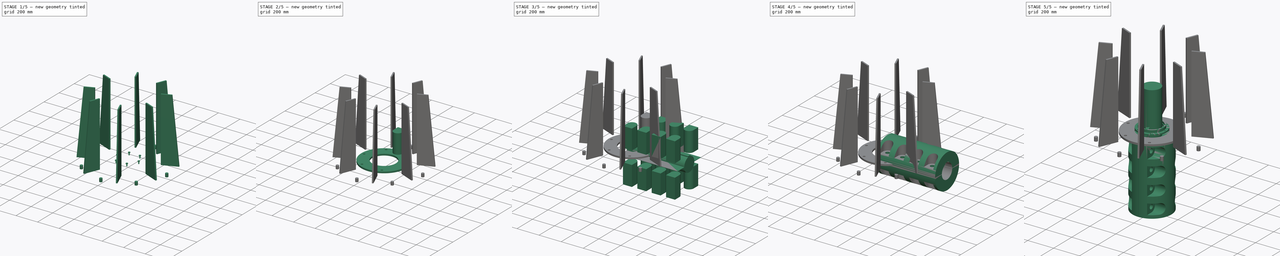
[diagram: build sequence overview — one tinted view per stage of 5, left to right]
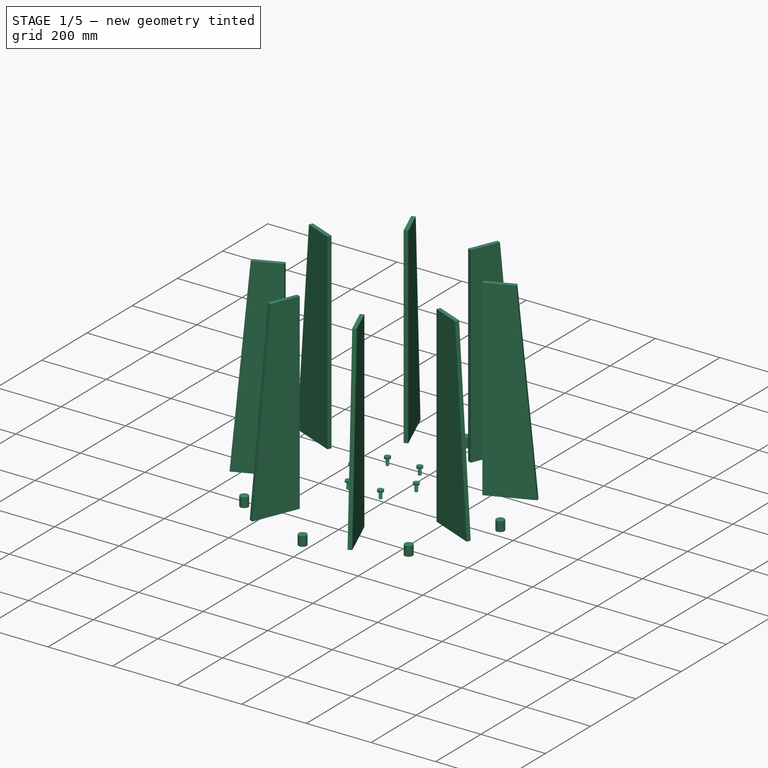
[diagram: stage 1 of 5 — iso view after this stage's code; geometry added in this stage tinted green]
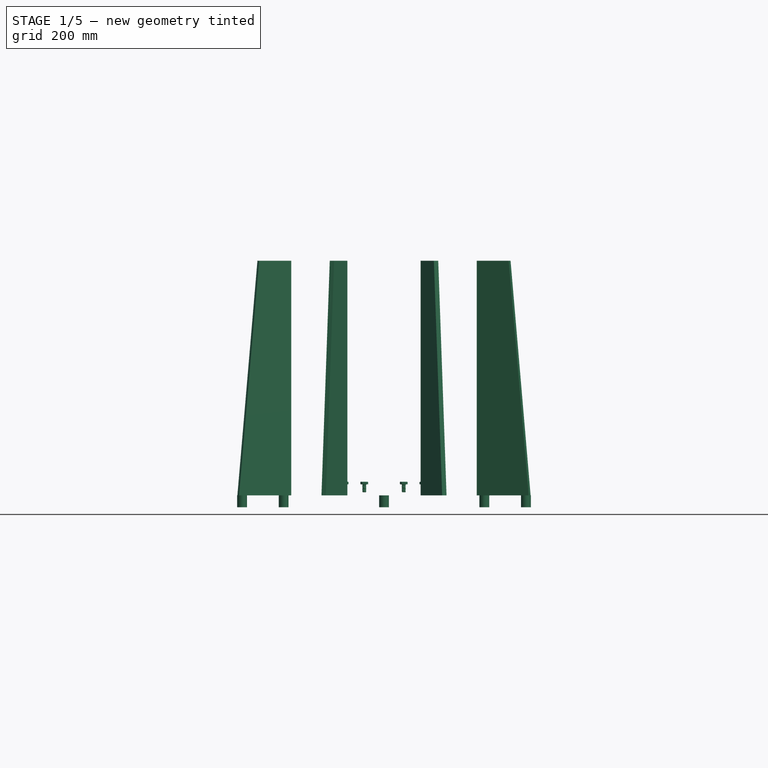
[diagram: stage 1 of 5 — front view after this stage's code; geometry added in this stage tinted green]
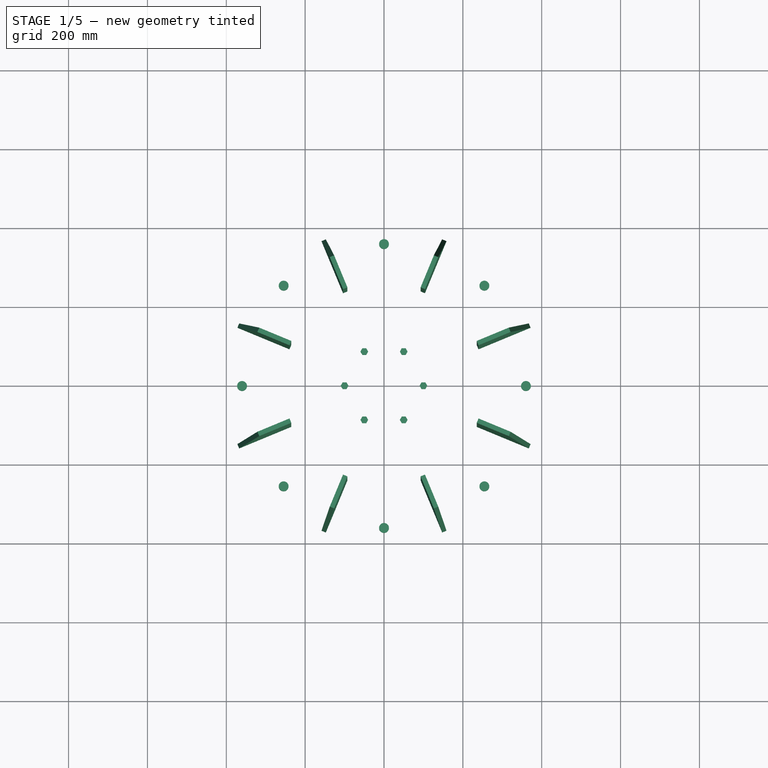
[diagram: stage 1 of 5 — top view after this stage's code; geometry added in this stage tinted green]
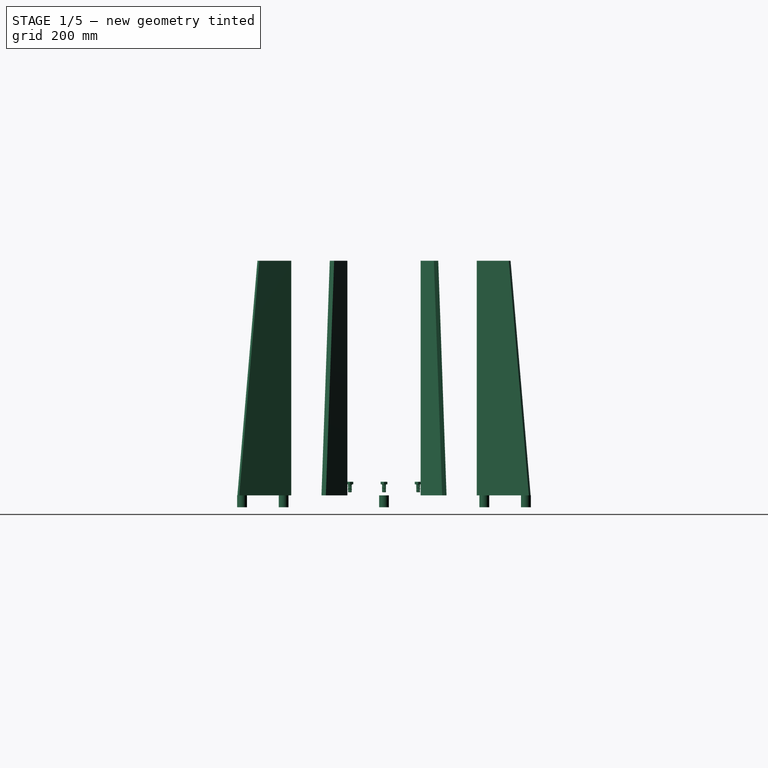
[diagram: stage 1 of 5 — right view after this stage's code; geometry added in this stage tinted green]
FCSTD DOCUMENT  (FreeCAD 0.21R33771 (Git))
Label: 駆動部Assy
License: All rights reserved
objects: Part::Feature×18, Sketcher::SketchObject×13, Part::FeaturePython×10, Part::Extrusion×7, App::Part×6, Part::Cut×6, PartDesign::Revolution×4, PartDesign::Body×4, Part::Revolution×2, Spreadsheet::Sheet×2, Part::Mirroring×2, Part::MultiFuse×2, Part::Compound×1, PartDesign::Pocket×1, PartDesign::PolarPattern×1
note: 72 computed .brp shape members not serialized (recipe doc carries the construction recipe); baked Part::Feature solids carry a one-line shape summary decoded from their .brp

FEATURE [PartDesign::Body] Body
  Group = -> [Sketch,Revolution]
  Origin = -> Origin002
  Tip = -> Revolution
FEATURE [Part::FeaturePython] Screw  label="M10x20-Screw"  # Fasteners workbench fastener (typed FeaturePython)
  Placement = pos=(100,0,28.046) rot=(0,0,1;0rad)
  diameter = 10
  invert = false
  leftHanded = false
  length = 0
  lengthCustom = 20
  matchOuter = false
  offset = 0
  thread = true
  type = 22
FEATURE [Part::FeaturePython] Array  # Draft array (typed FeaturePython)
  AlwaysSyncPlacement = false
  Angle = 360
  ArrayType = 1
  Axis = (0,0,1)
  Base = -> Screw
  Center = (0,0,0)
  Count = 6
  ExpandArray = false
  Fuse = false
  IntervalAxis = (0,0,0)
  IntervalX = (50,0,0)
  IntervalY = (0,50,0)
  IntervalZ = (0,0,50)
  NumberCircles = 3
  NumberPolar = 6
  NumberX = 2
  NumberY = 2
  NumberZ = 1
  PlacementList = 6 placements: [(100,0,28.046),(50,86.6025,28.046),(-50,86.6025,28.046),(-100,1.22465e-14,28.046),(-50,-86.6025,28.046),(50,-86.6025,28.046)]
  RadialDistance = 50
  ScaleList = (6) [(1,1,1),(1,1,1),(1,1,1),(1,1,1),(1,1,1),(1,1,1)]
  Symmetry = 1
  TangentialDistance = 25
FEATURE [App::Part] Part001  label="house"
  Group = -> [Cut,Body,Revolve,Extrude004,Array003,Screw,Array,Sketch005,Sketch010,Cut005]
  Origin = -> Origin006
FEATURE [Part::Feature] Part__Feature  label="減速機 v2"
  Placement = pos=(0,-7.2e-14,324.85) rot=(1,0,0;1.5708rad)
  shape: bbox 550 x 550 x 1097 mm, 38 faces (baked)
FEATURE [Sketcher::SketchObject] Sketch011
  FullyConstrained = true
  Placement = pos=(0,0,0) rot=(1,0,0;1.5708rad)
  sketch-geometry (12):
    g0: LineSegment StartX=170 StartY=0 StartZ=0 EndX=400 EndY=0 EndZ=0
    g1: LineSegment StartX=400 StartY=0 StartZ=0 EndX=400 EndY=-20 EndZ=0
    g2: LineSegment StartX=400 StartY=-20 StartZ=0 EndX=170 EndY=-20 EndZ=0
    g3: LineSegment StartX=170 StartY=-20 StartZ=0 EndX=170 EndY=0 EndZ=0
    g4: LineSegment StartX=250 StartY=625 StartZ=0 EndX=345 EndY=625 EndZ=0
    g5: LineSegment StartX=345 StartY=625 StartZ=0 EndX=345 EndY=595 EndZ=0
    g6: LineSegment StartX=345 StartY=595 StartZ=0 EndX=250 EndY=595 EndZ=0
    g7: LineSegment StartX=250 StartY=595 StartZ=0 EndX=250 EndY=625 EndZ=0
    g8: LineSegment StartX=245 StartY=595 StartZ=0 EndX=257 EndY=595 EndZ=0
    g9: LineSegment StartX=257 StartY=595 StartZ=0 EndX=257 EndY=0 EndZ=0
    g10: LineSegment StartX=257 StartY=0 StartZ=0 EndX=245 EndY=0 EndZ=0
    g11: LineSegment StartX=245 StartY=0 StartZ=0 EndX=245 EndY=595 EndZ=0
  constraints (36):
    c: Coincident(g0,g1)
    c: Coincident(g1,g2)
    c: Coincident(g2,g3)
    c: Coincident(g3,g0)
    c: Horizontal(g0)
    c: Horizontal(g2)
    c: Vertical(g1)
    c: Vertical(g3)
    c: Coincident(g4,g5)
    c: Coincident(g5,g6)
    c: Coincident(g6,g7)
    c: Coincident(g7,g4)
    c: Horizontal(g4)
    c: Horizontal(g6)
    c: Vertical(g7)
    c: Coincident(g8,g9)
    c: Coincident(g9,g10)
    c: Coincident(g10,g11)
    c: Coincident(g11,g8)
    c: Horizontal(g8)
    c: Horizontal(g10)
    c: Vertical(g9)
    c: Vertical(g11)
    c: PointOnObject(g8,g6)
    c: PointOnObject(g9,g0)
    c: DistanceY(g5,g5) = 30
    c: DistanceY(g1,g1) = 20
    c: PointOnObject(g0,g-1)
    c: DistanceX(g-1,g2) = 170
    c: DistanceX(g-1,g1) = 400
    c: DistanceY(g1,g4) = 645
    c: Vertical(g5)
    c: DistanceX(g-2,g6) = 250
    c: DistanceX(g6,g6) = 95
    c: DistanceX(g-2,g8) = 245
    c: DistanceX(g8,g8) = 12
FEATURE [Part::Revolution] Revolve001
  Angle = 360
  Axis = (0,0,1)
  Base = (0,0,0)
  FaceMakerClass = Part::FaceMakerBullseye
  Solid = true
  Source = -> Sketch011
  Symmetric = false
FEATURE [Sketcher::SketchObject] Sketch012
  FullyConstrained = false
  MapMode = 5
  Support = -> [Revolve001]
  sketch-geometry (1):
    g0: Circle CenterX=360 CenterY=0 CenterZ=0 NormalX=0 NormalY=0 NormalZ=1 AngleXU=0 Radius=12.4969
  constraints (2):
    c: PointOnObject(g0,g-1)
    c: DistanceX(g-1,g0) = 360
FEATURE [Part::Extrusion] Extrude005
  Base = -> Sketch012
  Dir = (0,0,1)
  DirMode = 2
  FaceMakerClass = Part::FaceMakerBullseye
  LengthFwd = 30
  LengthRev = 0
  Reversed = true
  Solid = true
  Symmetric = false
FEATURE [Part::FeaturePython] Array004  # Draft array (typed FeaturePython)
  AlwaysSyncPlacement = false
  Angle = 360
  ArrayType = 1
  Axis = (0,0,1)
  Base = -> Extrude005
  Center = (0,0,38)
  Count = 8
  ExpandArray = false
  Fuse = false
  IntervalAxis = (0,0,0)
  IntervalX = (50,0,0)
  IntervalY = (0,50,0)
  IntervalZ = (0,0,50)
  NumberCircles = 3
  NumberPolar = 8
  NumberX = 2
  NumberY = 2
  NumberZ = 1
  PlacementList = 8 placements: [(0,0,0),(0,0,0),(0,0,-7.10543e-15),(0,0,0),(0,0,0),(0,0,0),(0,0,0),(0,0,0)]
  RadialDistance = 50
  ScaleList = (8) [(1,1,1),(1,1,1),(1,1,1),(1,1,1),(1,1,1),(1,1,1),(1,1,1),(1,1,1)]
  Symmetry = 1
  TangentialDistance = 25
FEATURE [Sketcher::SketchObject] Sketch013
  ExternalGeometry = -> [Revolve001]
  FullyConstrained = true
  Placement = pos=(0,0,0) rot=(1,0,0;1.5708rad)
  sketch-geometry (4):
    g0: LineSegment StartX=257 StartY=595 StartZ=0 EndX=257 EndY=0 EndZ=0
    g1: LineSegment StartX=257 StartY=0 StartZ=0 EndX=400 EndY=0 EndZ=0
    g2: LineSegment StartX=400 StartY=0 StartZ=0 EndX=345 EndY=595 EndZ=0
    g3: LineSegment StartX=345 StartY=595 StartZ=0 EndX=257 EndY=595 EndZ=0
  constraints (8):
    c: Coincident(g0,g1)
    c: Coincident(g1,g2)
    c: Coincident(g2,g3)
    c: Coincident(g3,g0)
    c: Coincident(g0,g-4)
    c: Coincident(g0,g-4)
    c: Coincident(g2,g-3)
    c: Coincident(g1,g-5)
FEATURE [Part::Extrusion] Extrude006
  Base = -> Sketch013
  Dir = (0,-1,-3e-16)
  DirMode = 2
  FaceMakerClass = Part::FaceMakerBullseye
  LengthFwd = 12
  LengthRev = 0
  Placement = pos=(0,0,0) rot=(0,0,1;0.392699rad)
  Solid = true
  Symmetric = true
FEATURE [Part::FeaturePython] Array005  # Draft array (typed FeaturePython)
  AlwaysSyncPlacement = false
  Angle = 360
  ArrayType = 1
  Axis = (0,0,1)
  Base = -> Extrude006
  Center = (0,0,58)
  Count = 8
  ExpandArray = false
  Fuse = false
  IntervalAxis = (0,0,0)
  IntervalX = (50,0,0)
  IntervalY = (0,50,0)
  IntervalZ = (0,0,50)
  NumberCircles = 3
  NumberPolar = 8
  NumberX = 2
  NumberY = 2
  NumberZ = 1
  PlacementList = 8 placements: [(0,0,0),(0,0,0),(0,0,-1.42109e-14),(0,0,0),(0,0,0),(0,0,0),(0,0,0),(0,0,0)]
  RadialDistance = 50
  ScaleList = (8) [(1,1,1),(1,1,1),(1,1,1),(1,1,1),(1,1,1),(1,1,1),(1,1,1),(1,1,1)]
  Symmetry = 1
  TangentialDistance = 25
FEATURE [App::Part] Part003  label="reducerBase"
  Group = -> [Revolve001,Sketch012,Extrude005,Sketch011,Array004,Sketch013,Extrude006,Array005]
  Origin = -> Origin
FEATURE [App::Part] Part004  label="Drive"
  Group = -> [Part003,Part__Feature,Clone,Part002,Part,Part001,Body002,Body001,NSK_7926A5]
  Origin = -> Origin010
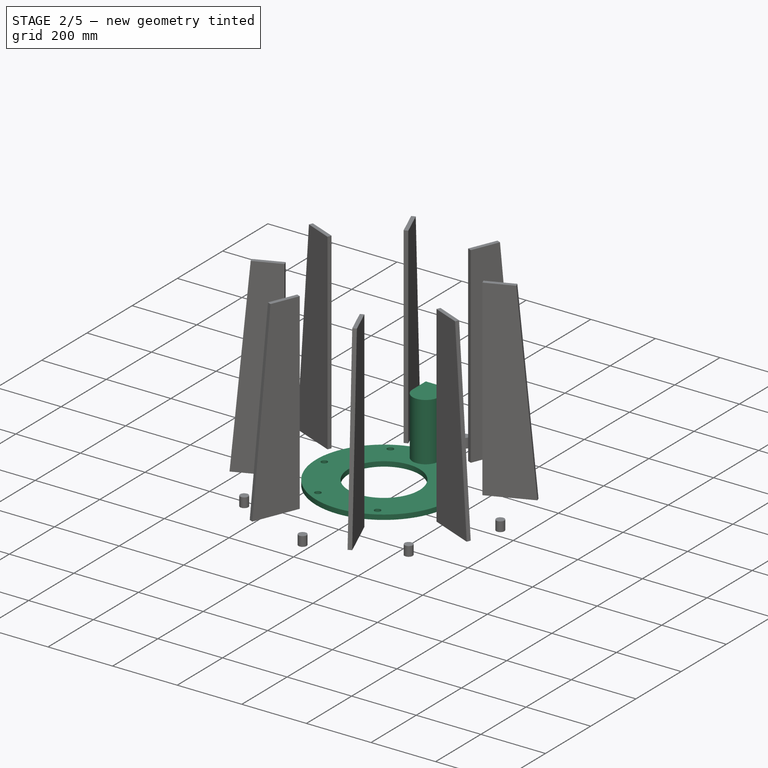
[diagram: stage 2 of 5 — iso view after this stage's code; geometry added in this stage tinted green]
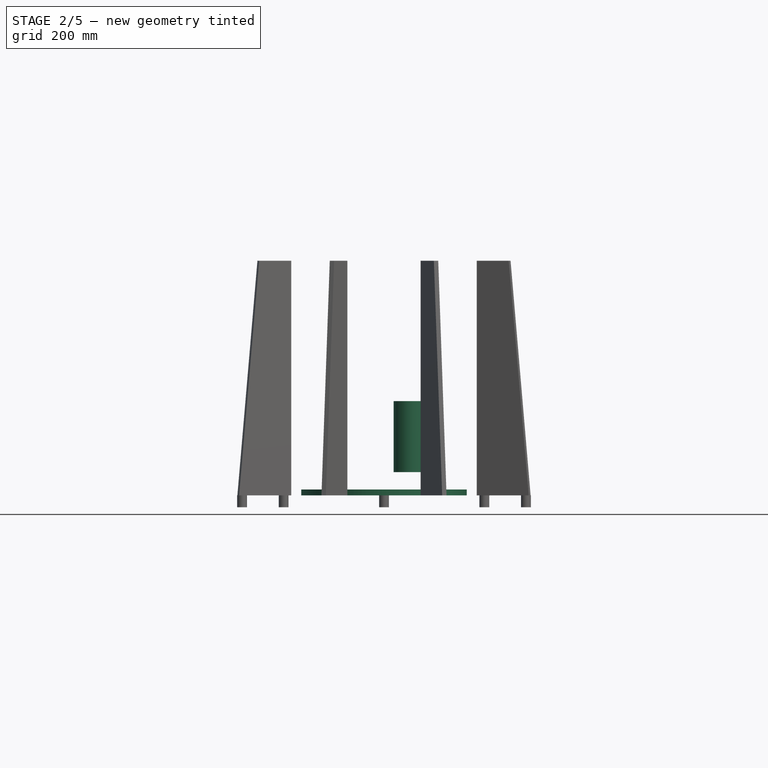
[diagram: stage 2 of 5 — front view after this stage's code; geometry added in this stage tinted green]
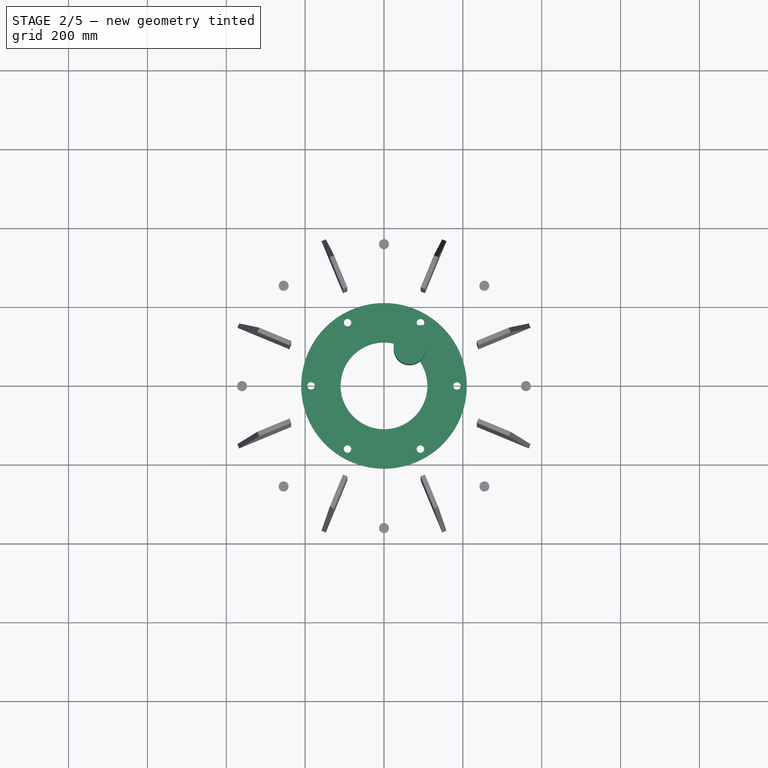
[diagram: stage 2 of 5 — top view after this stage's code; geometry added in this stage tinted green]
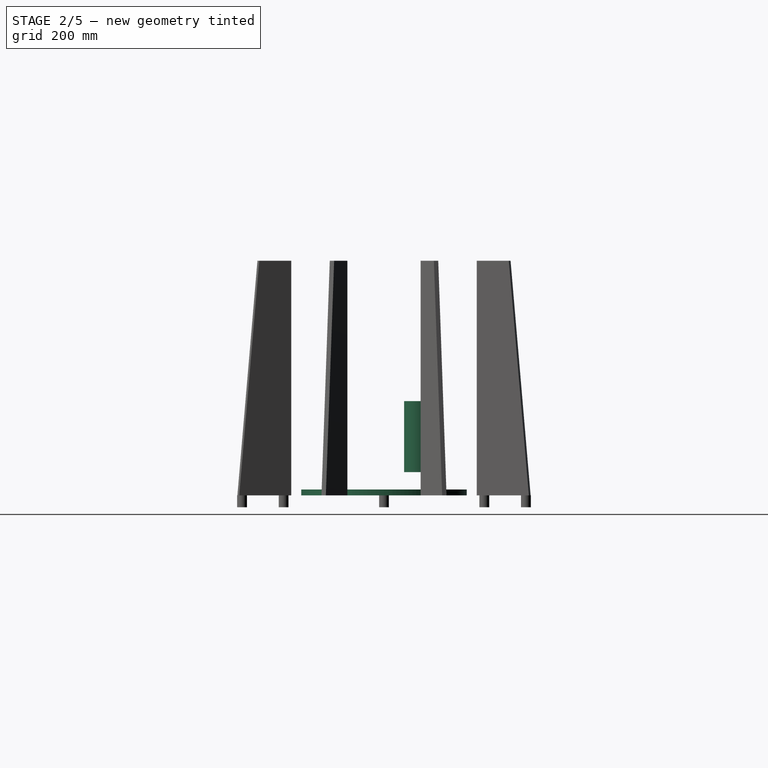
[diagram: stage 2 of 5 — right view after this stage's code; geometry added in this stage tinted green]
FEATURE [App::Part] NSK_7926A5
  Group = -> [Part__Feature007,Part__Feature008,Part__Feature009,Part__Feature010,Part__Feature011,Part__Feature012,Part__Feature013,Part__Feature014,Part__Feature015,Part__Feature016,Part__Feature017,Part__Feature018,Part__Feature019,Part__Feature020,Part__Feature021,Part__Feature022,Part__Feature023,Compound]
  Origin = -> Origin001
  Placement = pos=(0,0,0) rot=(0,1,0;4.71239rad)
FEATURE [Sketcher::SketchObject] Sketch
  FullyConstrained = false
  MapMode = 5
  Placement = pos=(0,0,0) rot=(1,0,0;1.5708rad)
  Support = -> [XZ_Plane002]
  sketch-geometry (6):
    g0: LineSegment StartX=90 StartY=28 StartZ=0 EndX=90 EndY=0 EndZ=0
    g1: LineSegment StartX=90 StartY=0 StartZ=0 EndX=84.9357 EndY=0 EndZ=0
    g2: LineSegment StartX=84.9357 StartY=0 StartZ=0 EndX=84.9357 EndY=-5 EndZ=0
    g3: LineSegment StartX=84.9357 StartY=-5 StartZ=0 EndX=110 EndY=-5 EndZ=0
    g4: LineSegment StartX=110 StartY=-5 StartZ=0 EndX=110 EndY=28 EndZ=0
    g5: LineSegment StartX=110 StartY=28 StartZ=0 EndX=90 EndY=28 EndZ=0
  constraints (17):
    c: PointOnObject(g0,g-1)
    c: Vertical(g0)
    c: Coincident(g0,g1)
    c: PointOnObject(g1,g-1)
    c: Coincident(g1,g2)
    c: Vertical(g2)
    c: Coincident(g2,g3)
    c: Horizontal(g3)
    c: Coincident(g3,g4)
    c: Vertical(g4)
    c: Coincident(g4,g5)
    c: Coincident(g5,g0)
    c: Horizontal(g5)
    c: DistanceX(g-1,g0) = 90
    c: DistanceY(g0,g0) = 28
    c: DistanceX(g-2,g4) = 110
    c: DistanceY(g2,g2) = 5
FEATURE [PartDesign::Revolution] Revolution
  Angle = 360
  Axis = (0,2e-16,1)
  Base = (0,0,0)
  Placement = pos=(0,0,0) rot=(1,0,0;1.5708rad)
  Profile = -> Sketch
  ReferenceAxis = -> Sketch [V_Axis]
  Reversed = true
FEATURE [Part::Cut] Cut
  Base = -> Body
  Tool = -> Array
FEATURE [PartDesign::Body] Body002  label="oilsealCover"
  Group = -> [Sketch002,Revolution003,Sketch004,Pocket,PolarPattern]
  Origin = -> Origin004
  Tip = -> PolarPattern
FEATURE [Sketcher::SketchObject] Sketch005
  ExternalGeometry = -> [Cut]
  FullyConstrained = true
  Placement = pos=(0,0,0) rot=(1,0,0;1.5708rad)
  sketch-geometry (4):
    g0: LineSegment StartX=110 StartY=0 StartZ=0 EndX=210 EndY=0 EndZ=0
    g1: LineSegment StartX=210 StartY=0 StartZ=0 EndX=210 EndY=15 EndZ=0
    g2: LineSegment StartX=210 StartY=15 StartZ=0 EndX=110 EndY=15 EndZ=0
    g3: LineSegment StartX=110 StartY=15 StartZ=0 EndX=110 EndY=0 EndZ=0
  constraints (12):
    c: Coincident(g0,g1)
    c: Coincident(g1,g2)
    c: Coincident(g2,g3)
    c: Coincident(g3,g0)
    c: Horizontal(g0)
    c: Horizontal(g2)
    c: Vertical(g1)
    c: Vertical(g3)
    c: PointOnObject(g0,g-1)
    c: PointOnObject(g0,g-3)
    c: DistanceX(g2,g2) = 100
    c: DistanceY(g1,g1) = 15
FEATURE [Part::Revolution] Revolve
  Angle = 360
  Axis = (0,0,1)
  Base = (0,0,0)
  FaceMakerClass = Part::FaceMakerBullseye
  Solid = true
  Source = -> Sketch005
  Symmetric = false
FEATURE [Sketcher::SketchObject] Sketch008
  FullyConstrained = true
  Placement = pos=(0,0,59) rot=(0,0,1;0rad)
  expr: .Placement.Base.z = Spreadsheet001.C0 + Spreadsheet001.E / 2
  expr: Constraints[10] = Spreadsheet001.F0
  expr: Constraints[6] = Spreadsheet001.A0 / 2
  expr: Constraints[8] = Spreadsheet001.H0
  expr: Constraints[9] = Spreadsheet001.D / 2
  sketch-geometry (4):
    g0: LineSegment StartX=24.5 StartY=150 StartZ=0 EndX=24.5 EndY=91.5 EndZ=0
    g1: ArcOfCircle CenterX=65 CenterY=91.5 CenterZ=0 NormalX=0 NormalY=0 NormalZ=1 AngleXU=0 Radius=40.5 StartAngle=3.14159 EndAngle=6.28319
    g2: LineSegment StartX=105.5 StartY=91.5 StartZ=0 EndX=105.5 EndY=150 EndZ=0
    g3: LineSegment StartX=105.5 StartY=150 StartZ=0 EndX=24.5 EndY=150 EndZ=0
  constraints (11):
    c: Vertical(g0)
    c: Tangent(g0,g1) = -1.5708
    c: Coincident(g2,g3)
    c: Coincident(g3,g0)
    c: Horizontal(g3)
    c: Vertical(g2)
    c: DistanceY(g-1,g1) = 91.5
    c: Tangent(g1,g2) = -1.5708
    c: DistanceX(g3,g3) = 81
    c: DistanceY(g-1,g0) = 150
    c: DistanceX(g-1,g1) = 65
FEATURE [Part::Extrusion] Extrude002
  Base = -> Sketch008
  Dir = (0,0,1)
  DirMode = 2
  FaceMakerClass = Part::FaceMakerBullseye
  LengthFwd = 180
  LengthRev = 0
  Solid = true
  Symmetric = false
  expr: LengthFwd = Spreadsheet001.D * 0.6
FEATURE [Sketcher::SketchObject] Sketch010
  FullyConstrained = false
  MapMode = 5
  Placement = pos=(0,0,15) rot=(0,0,1;0rad)
  Support = -> [Revolve]
  sketch-geometry (1):
    g0: Circle CenterX=185 CenterY=-0.1655 CenterZ=0 NormalX=0 NormalY=0 NormalZ=1 AngleXU=0 Radius=9.5
  constraints (2):
    c: Diameter(g0) = 19
    c: DistanceX(g-1,g0) = 185
FEATURE [Part::Extrusion] Extrude004
  Base = -> Sketch010
  Dir = (0,0,1)
  DirMode = 2
  FaceMakerClass = Part::FaceMakerBullseye
  LengthFwd = 30
  LengthRev = 0
  Reversed = true
  Solid = true
  Symmetric = false
FEATURE [Part::FeaturePython] Array003  # Draft array (typed FeaturePython)
  AlwaysSyncPlacement = false
  Angle = 360
  ArrayType = 1
  Axis = (0,0,1)
  Base = -> Extrude004
  Center = (0,0,590.09)
  Count = 6
  ExpandArray = false
  Fuse = false
  IntervalAxis = (0,0,0)
  IntervalX = (50,0,0)
  IntervalY = (0,50,0)
  IntervalZ = (0,0,50)
  NumberCircles = 3
  NumberPolar = 6
  NumberX = 2
  NumberY = 2
  NumberZ = 1
  PlacementList = 6 placements: [(0,0,0),(0,0,0),(0,0,0),(0,0,0),(0,0,1.13687e-13),(0,0,0)]
  RadialDistance = 50
  ScaleList = (6) [(1,1,1),(1,1,1),(1,1,1),(1,1,1),(1,1,1),(1,1,1)]
  Symmetry = 1
  TangentialDistance = 25
FEATURE [Part::Cut] Cut005
  Base = -> Revolve
  Tool = -> Array003
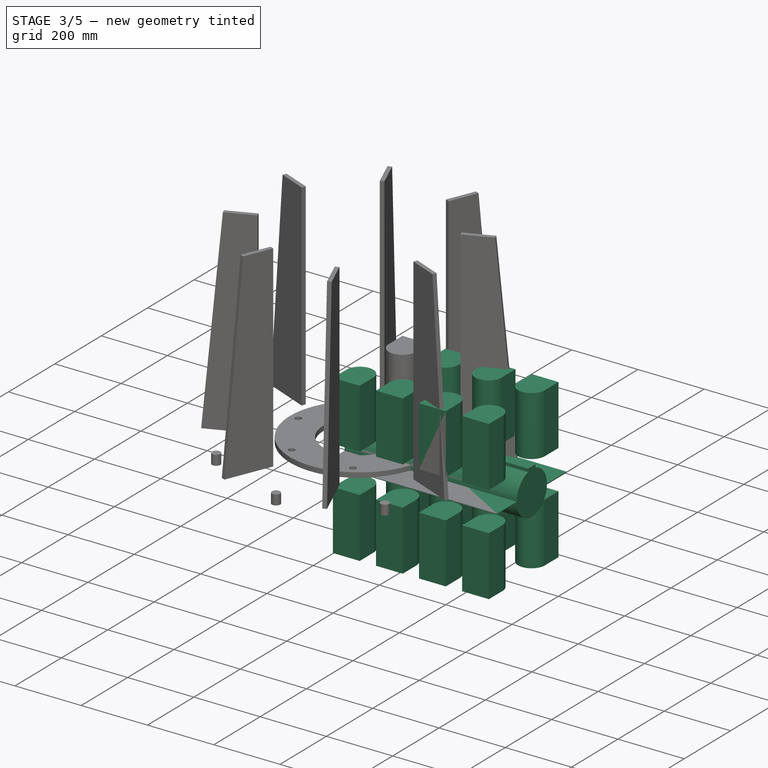
[diagram: stage 3 of 5 — iso view after this stage's code; geometry added in this stage tinted green]
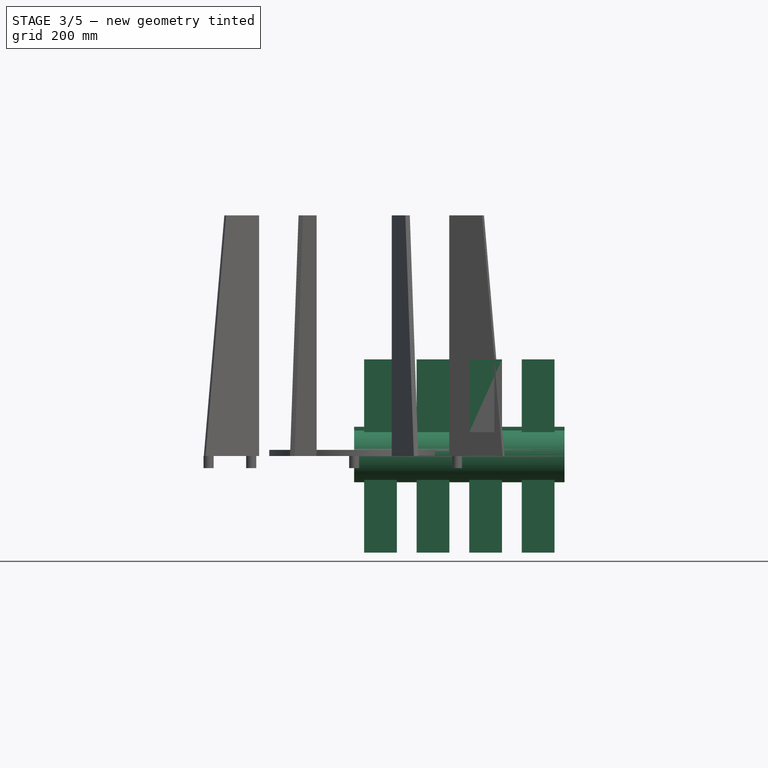
[diagram: stage 3 of 5 — front view after this stage's code; geometry added in this stage tinted green]
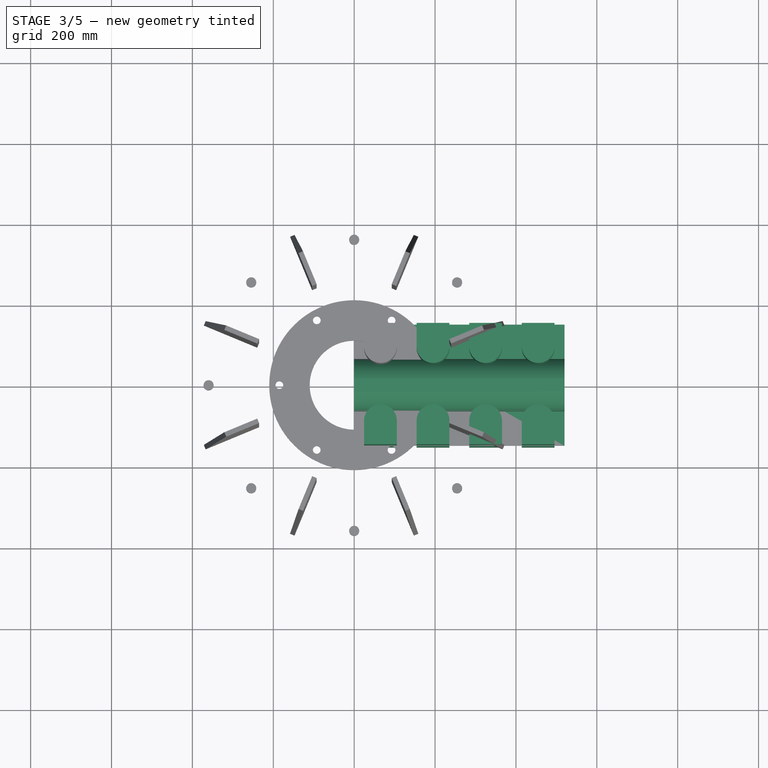
[diagram: stage 3 of 5 — top view after this stage's code; geometry added in this stage tinted green]
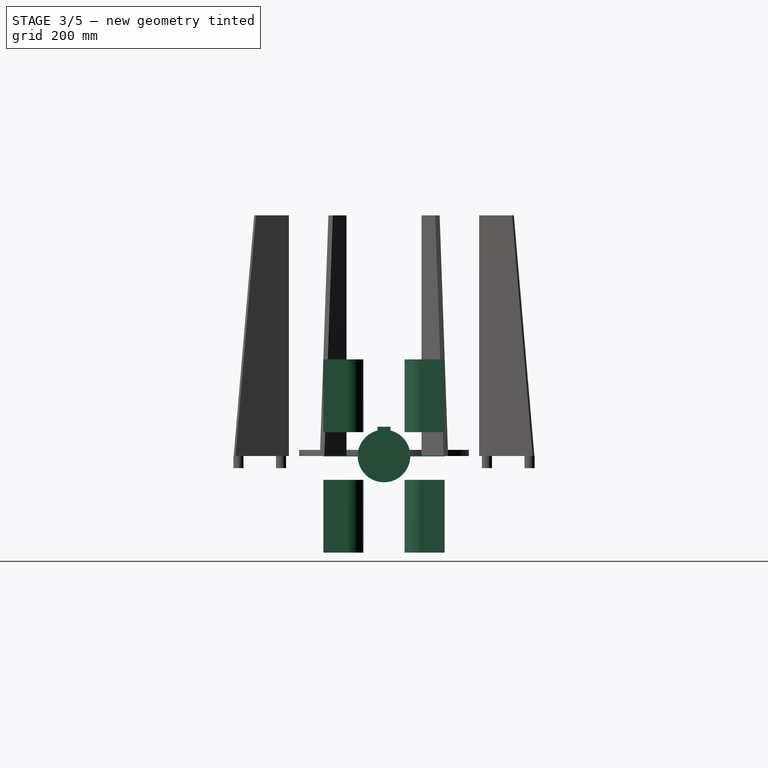
[diagram: stage 3 of 5 — right view after this stage's code; geometry added in this stage tinted green]
FEATURE [Part::FeaturePython] __keyway_boss  # WARN: FeaturePython — macro-defined, semantics opaque (R4)
  D = 130
  g0 = 7.85
  mass = 0
  expr: D = Spreadsheet001.d
FEATURE [Part::Extrusion] Extrude
  Base = -> __keyway_boss
  Dir = (1,0,0)
  DirMode = 2
  FaceMakerClass = Part::FaceMakerBullseye
  LengthFwd = 520
  LengthRev = 0
  Solid = false
  Symmetric = false
  expr: LengthFwd = Spreadsheet001.L
FEATURE [Sketcher::SketchObject] Sketch007
  FullyConstrained = true
  Placement = pos=(0,0,0) rot=(0.57735,-0.57735,-0.57735;2.0944rad)
  expr: Constraints[10] = Spreadsheet001.E
  expr: Constraints[9] = Spreadsheet001.D
  sketch-geometry (4):
    g0: LineSegment StartX=-150 StartY=-1 StartZ=0 EndX=150 EndY=-1 EndZ=0
    g1: LineSegment StartX=150 StartY=-1 StartZ=0 EndX=150 EndY=1 EndZ=0
    g2: LineSegment StartX=150 StartY=1 StartZ=0 EndX=-150 EndY=1 EndZ=0
    g3: LineSegment StartX=-150 StartY=1 StartZ=0 EndX=-150 EndY=-1 EndZ=0
  constraints (11):
    c: Coincident(g0,g1)
    c: Coincident(g1,g2)
    c: Coincident(g2,g3)
    c: Coincident(g3,g0)
    c: Horizontal(g0)
    c: Horizontal(g2)
    c: Vertical(g1)
    c: Vertical(g3)
    c: Symmetric(g1,g0,g-1)
    c: DistanceX(g2,g2) = 300
    c: DistanceY(g3,g3) = 2
FEATURE [Part::Extrusion] Extrude001
  Base = -> Sketch007
  Dir = (-1,0,0)
  DirMode = 2
  FaceMakerClass = Part::FaceMakerBullseye
  LengthFwd = 520
  LengthRev = 0
  Reversed = true
  Solid = true
  Symmetric = false
  expr: LengthFwd = Spreadsheet001.L
FEATURE [Spreadsheet::Sheet] Spreadsheet001
  cells = B2=130; A3='d; B3(d)=130; A4='D; B4(D)=300; A5='L; B5(L)=520; A6='A0; B6(A0)=183; A7='B; B7(B)=101; A8='C0; B8(C0)=58; A9='E; B9(E)=2; A10='F0; B10(F0)=65; A11='G0; B11(G0)=130; A12='H0; B12(H0)=81; A13='S0; B13(S0)=35; A14='BoltNo; B14(BoltNo)=8; A15='BoltSize; B15(BoltSize)='M32; A16='BoltL; B16(BoltL)==2 * B8 + B9 + B13
FEATURE [Part::FeaturePython] Array002  # Draft array (typed FeaturePython)
  Angle = 360
  ArrayType = 0
  Axis = (0,0,1)
  Base = -> Extrude002
  Center = (0,0,0)
  Count = 4
  Fuse = false
  IntervalAxis = (0,0,0)
  IntervalX = (130,0,0)
  IntervalY = (0,1,0)
  IntervalZ = (0,0,50)
  NumberCircles = 3
  NumberPolar = 5
  NumberX = 4
  NumberY = 1
  NumberZ = 1
  RadialDistance = 50
  Symmetry = 1
  TangentialDistance = 25
  expr: .IntervalX.x = Spreadsheet001.G0
  expr: NumberX = Spreadsheet001.BoltNo / 2
FEATURE [Part::Mirroring] mirror  label="Array (mirrored) "
  Base = (-1000,0,0)
  Normal = (0,-1,0)
  Source = -> Array002
FEATURE [Part::MultiFuse] Fusion
  Shapes = -> [mirror,Array002]
FEATURE [Part::Mirroring] mirror001  label="Fusion (mirrored) "
  Base = (-1000,0,0)
  Normal = (0,0,-1)
  Source = -> Fusion
FEATURE [Part::MultiFuse] Fusion001
  Shapes = -> [mirror001,Fusion]
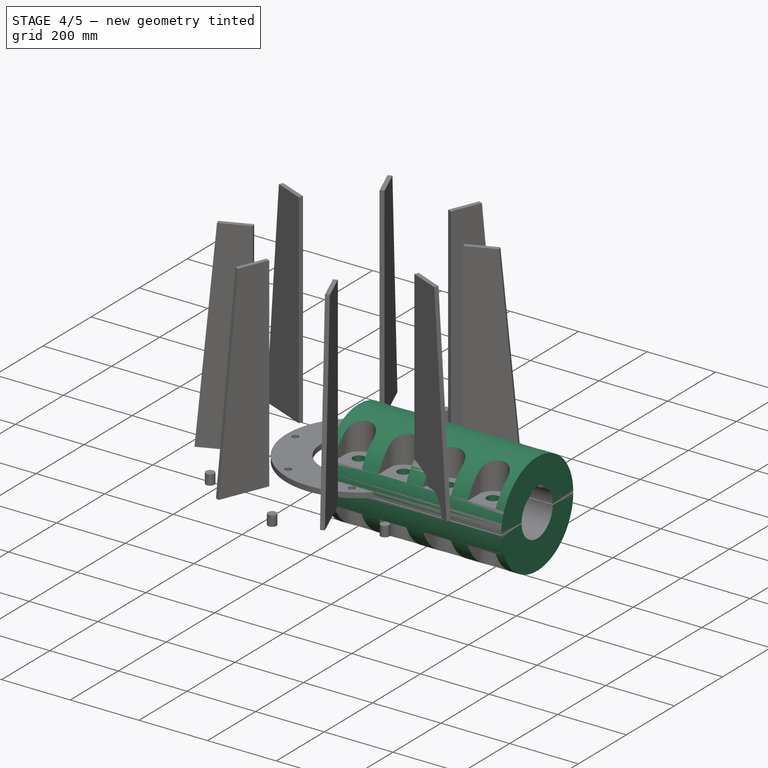
[diagram: stage 4 of 5 — iso view after this stage's code; geometry added in this stage tinted green]
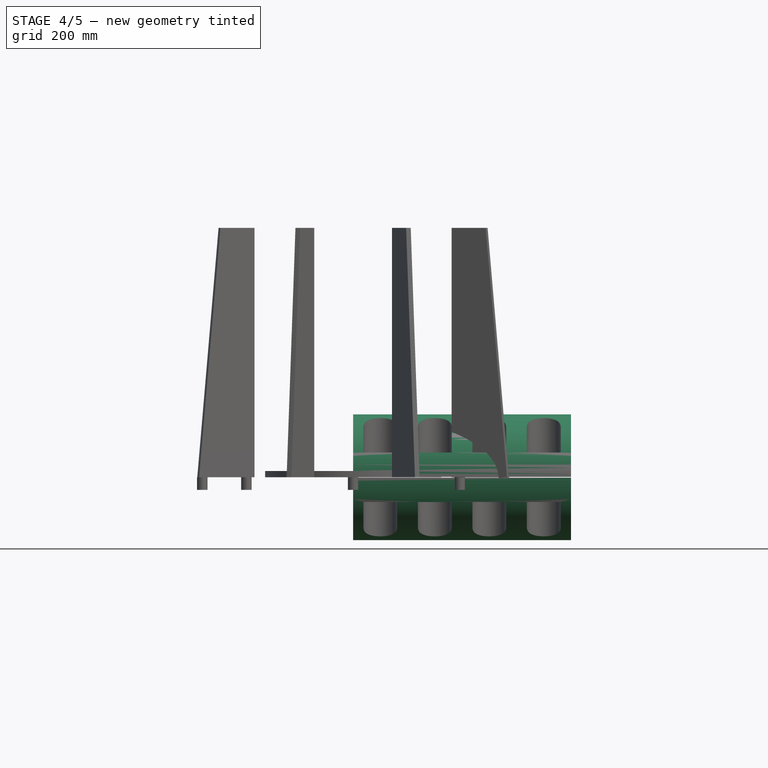
[diagram: stage 4 of 5 — front view after this stage's code; geometry added in this stage tinted green]
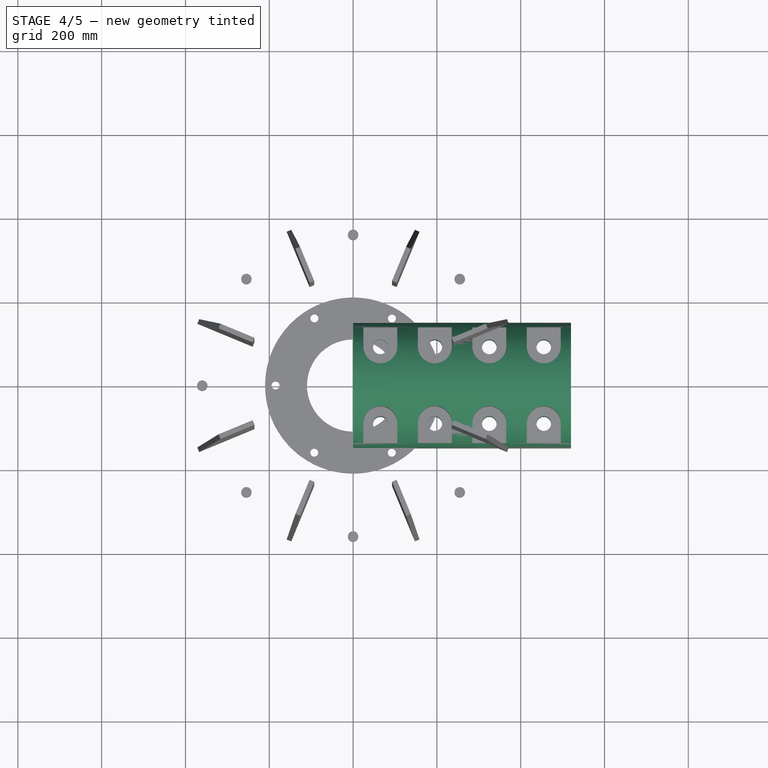
[diagram: stage 4 of 5 — top view after this stage's code; geometry added in this stage tinted green]
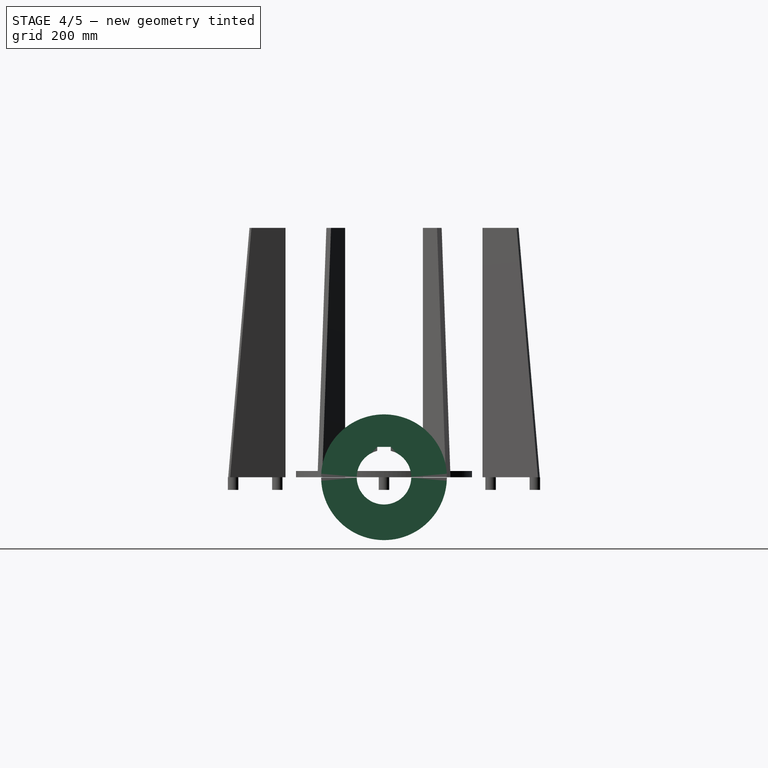
[diagram: stage 4 of 5 — right view after this stage's code; geometry added in this stage tinted green]
FEATURE [PartDesign::Body] Body003  label="Oilseal"
  Group = -> [Sketch006,Revolution004]
  Origin = -> Origin007
  Placement = pos=(0,0,0) rot=(0,-1,0;1.5708rad)
  Tip = -> Revolution004
FEATURE [App::Part] Part  label="oilseal"
  Group = -> [Body003,Spreadsheet]
  Origin = -> Origin008
  Placement = pos=(0,0,44) rot=(0,0,1;0rad)
FEATURE [Part::FeaturePython] __basic  # WARN: FeaturePython — macro-defined, semantics opaque (R4)
  D = 300
  I = 32460.7
  L = 520
  g0 = 7.85
  mass = 288.54
  type = 0_basic
  expr: D = Spreadsheet001.D
  expr: L = Spreadsheet001.L
FEATURE [Part::Cut] Cut001
  Base = -> __basic
  Tool = -> Extrude
FEATURE [Part::Cut] Cut002
  Base = -> Cut001
  Tool = -> Extrude001
FEATURE [Sketcher::SketchObject] Sketch009
  FullyConstrained = true
  expr: Constraints[0] = Spreadsheet001.F0
  expr: Constraints[1] = Spreadsheet001.S0
  expr: Constraints[2] = Spreadsheet001.A0 / 2
  sketch-geometry (1):
    g0: Circle CenterX=65 CenterY=91.5 CenterZ=0 NormalX=0 NormalY=0 NormalZ=1 AngleXU=0 Radius=17.5
  constraints (3):
    c: DistanceX(g-1,g0) = 65
    c: Diameter(g0) = 35
    c: DistanceY(g-1,g0) = 91.5
FEATURE [Part::Extrusion] Extrude003
  Base = -> Sketch009
  Dir = (0,0,1)
  DirMode = 2
  FaceMakerClass = Part::FaceMakerBullseye
  LengthFwd = 118
  LengthRev = 0
  Solid = true
  Symmetric = true
  expr: LengthFwd = Spreadsheet001.C0 * 2 + Spreadsheet001.E
FEATURE [Part::FeaturePython] Array001  label="BoltHoles"  # Draft array (typed FeaturePython)
  Angle = 360
  ArrayType = 0
  Axis = (0,0,1)
  Base = -> Extrude003
  Center = (0,0,0)
  Count = 16
  Fuse = false
  IntervalAxis = (0,0,0)
  IntervalX = (130,0,0)
  IntervalY = (0,-183,0)
  IntervalZ = (0,0,59)
  NumberCircles = 3
  NumberPolar = 5
  NumberX = 8
  NumberY = 2
  NumberZ = 1
  RadialDistance = 50
  Symmetry = 1
  TangentialDistance = 25
  expr: .IntervalX.x = Spreadsheet001.G0
  expr: .IntervalY.y = -Spreadsheet001.A0
  expr: .IntervalZ.z = Spreadsheet001.C0 + Spreadsheet001.E / 2
  expr: NumberX = Spreadsheet001.BoltNo
FEATURE [Part::Cut] Cut003
  Base = -> Cut002
  Tool = -> Fusion001
FEATURE [Part::Cut] Cut004  label="SplitTubeJoint"
  Base = -> Cut003
  Tool = -> Array001
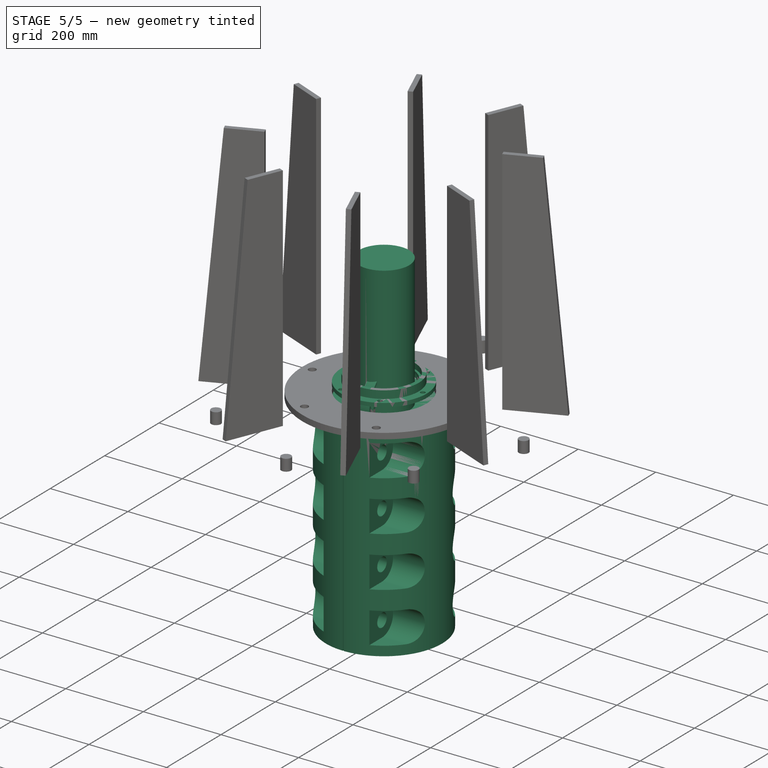
[diagram: stage 5 of 5 — iso view after this stage's code; geometry added in this stage tinted green]
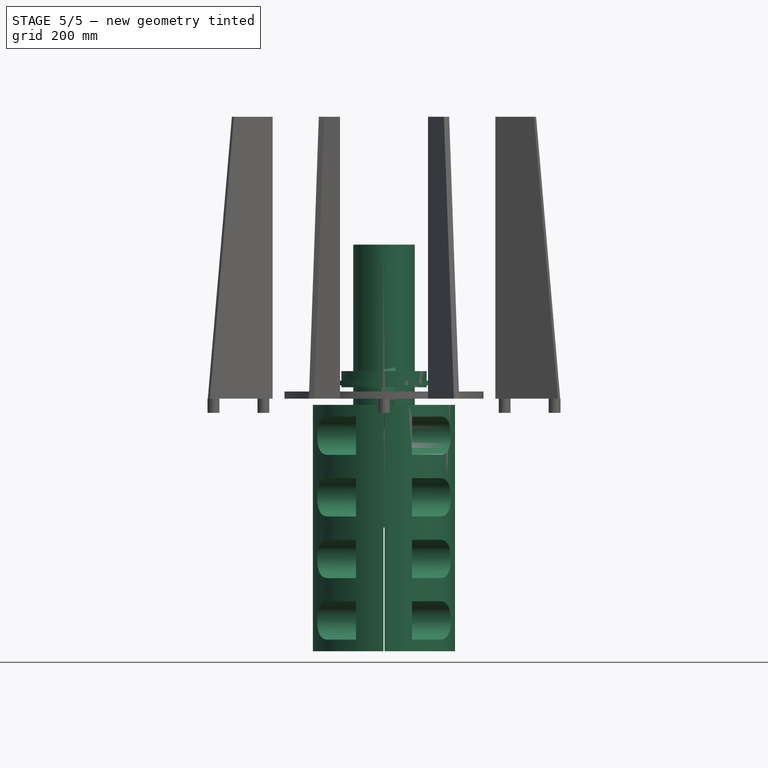
[diagram: stage 5 of 5 — front view after this stage's code; geometry added in this stage tinted green]
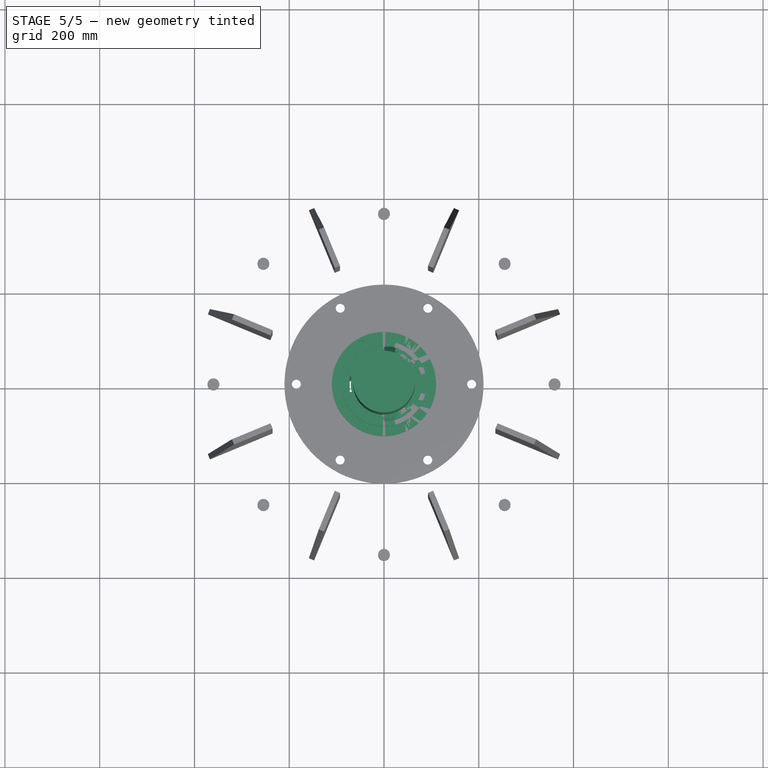
[diagram: stage 5 of 5 — top view after this stage's code; geometry added in this stage tinted green]
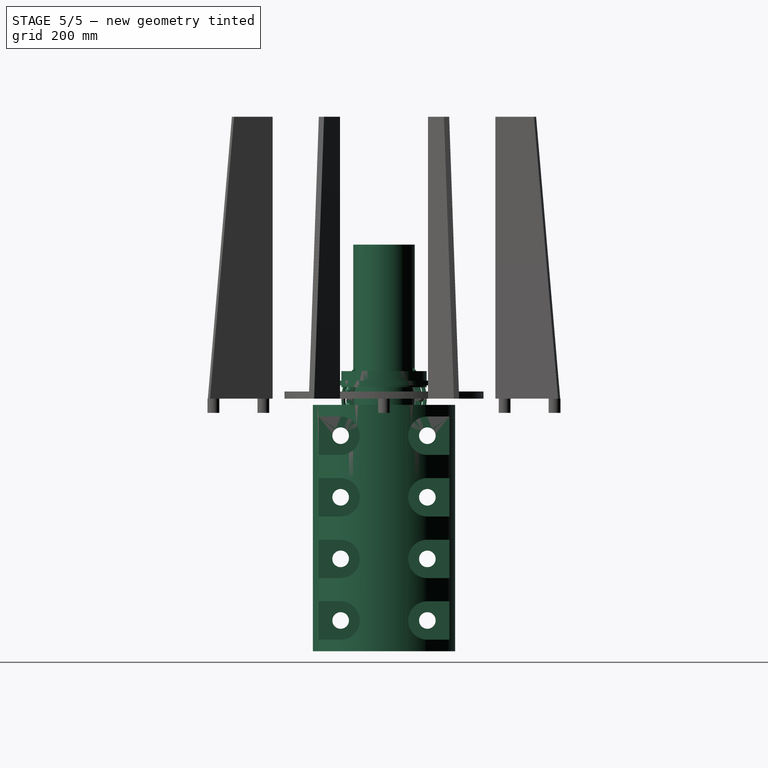
[diagram: stage 5 of 5 — right view after this stage's code; geometry added in this stage tinted green]
FEATURE [Part::Feature] Part__Feature007  label="7926A5 Inner ring"
  shape: bbox 24 x 167.8 x 167.8 mm, 8 faces (baked)
FEATURE [Part::Feature] Part__Feature008  label="7926A5 Outer ring"
  shape: bbox 24 x 194.8 x 194.8 mm, 8 faces (baked)
FEATURE [Part::Feature] Part__Feature009  label="7926A5 Ball"
  Placement = pos=(12,77.5,0) rot=(0,0,1;3.14159rad)
  shape: bbox 13.75 x 13.75 x 13.75 mm, 1 faces (baked)
FEATURE [Part::Feature] Part__Feature010  label="7926A5 Ball001"
  Placement = pos=(12,70.7998,31.5221) rot=(0,0,1;3.14159rad)
  shape: bbox 13.75 x 13.75 x 13.75 mm, 1 faces (baked)
FEATURE [Part::Feature] Part__Feature011  label="7926A5 Ball002"
  Placement = pos=(12,51.8576,57.5937) rot=(0,0,1;3.14159rad)
  shape: bbox 13.75 x 13.75 x 13.75 mm, 1 faces (baked)
FEATURE [Part::Feature] Part__Feature012  label="7926A5 Ball003"
  Placement = pos=(12,23.9488,73.7069) rot=(0,0,1;3.14159rad)
  shape: bbox 13.75 x 13.75 x 13.75 mm, 1 faces (baked)
FEATURE [Part::Feature] Part__Feature013  label="7926A5 Ball004"
  Placement = pos=(12,-8.10096,77.0754) rot=(0,0,1;3.14159rad)
  shape: bbox 13.75 x 13.75 x 13.75 mm, 1 faces (baked)
FEATURE [Part::Feature] Part__Feature014  label="7926A5 Ball005"
  Placement = pos=(12,-38.75,67.117) rot=(0,0,1;3.14159rad)
  shape: bbox 13.75 x 13.75 x 13.75 mm, 1 faces (baked)
FEATURE [Part::Feature] Part__Feature015  label="7926A5 Ball006"
  Placement = pos=(12,-62.6988,45.5534) rot=(0,0,1;3.14159rad)
  shape: bbox 13.75 x 13.75 x 13.75 mm, 1 faces (baked)
FEATURE [Part::Feature] Part__Feature016  label="7926A5 Ball007"
  Placement = pos=(12,-75.8064,16.1132) rot=(0,0,1;3.14159rad)
  shape: bbox 13.75 x 13.75 x 13.75 mm, 1 faces (baked)
FEATURE [Part::Feature] Part__Feature017  label="7926A5 Ball008"
  Placement = pos=(12,-75.8064,-16.1132) rot=(0,0,1;3.14159rad)
  shape: bbox 13.75 x 13.75 x 13.75 mm, 1 faces (baked)
FEATURE [Part::Feature] Part__Feature018  label="7926A5 Ball009"
  Placement = pos=(12,-62.6988,-45.5534) rot=(0,0,1;3.14159rad)
  shape: bbox 13.75 x 13.75 x 13.75 mm, 1 faces (baked)
FEATURE [Part::Feature] Part__Feature019  label="7926A5 Ball010"
  Placement = pos=(12,-38.75,-67.117) rot=(0,0,1;3.14159rad)
  shape: bbox 13.75 x 13.75 x 13.75 mm, 1 faces (baked)
FEATURE [Part::Feature] Part__Feature020  label="7926A5 Ball011"
  Placement = pos=(12,-8.10096,-77.0754) rot=(0,0,1;3.14159rad)
  shape: bbox 13.75 x 13.75 x 13.75 mm, 1 faces (baked)
FEATURE [Part::Feature] Part__Feature021  label="7926A5 Ball012"
  Placement = pos=(12,23.9488,-73.7069) rot=(0,0,1;3.14159rad)
  shape: bbox 13.75 x 13.75 x 13.75 mm, 1 faces (baked)
FEATURE [Part::Feature] Part__Feature022  label="7926A5 Ball013"
  Placement = pos=(12,51.8576,-57.5937) rot=(0,0,1;3.14159rad)
  shape: bbox 13.75 x 13.75 x 13.75 mm, 1 faces (baked)
FEATURE [Part::Feature] Part__Feature023  label="7926A5 Ball014"
  Placement = pos=(12,70.7998,-31.5221) rot=(0,0,1;3.14159rad)
  shape: bbox 13.75 x 13.75 x 13.75 mm, 1 faces (baked)
FEATURE [Part::Compound] Compound
  Links = -> [Part__Feature007,Part__Feature008,Part__Feature009,Part__Feature010,Part__Feature011,Part__Feature012,Part__Feature013,Part__Feature014,Part__Feature015,Part__Feature016,Part__Feature017,Part__Feature018,Part__Feature019,Part__Feature020,Part__Feature021,Part__Feature022,Part__Feature023]
FEATURE [Sketcher::SketchObject] Sketch001
  FullyConstrained = true
  MapMode = 5
  Placement = pos=(0,0,0) rot=(1,0,0;1.5708rad)
  Support = -> [XZ_Plane003]
  sketch-geometry (8):
    g0: LineSegment StartX=65 StartY=-272 StartZ=0 EndX=65 EndY=28 EndZ=0
    g1: LineSegment StartX=65 StartY=28 StartZ=0 EndX=70 EndY=28 EndZ=0
    g2: LineSegment StartX=70 StartY=28 StartZ=0 EndX=70 EndY=35 EndZ=0
    g3: LineSegment StartX=70 StartY=35 StartZ=0 EndX=65 EndY=35 EndZ=0
    g4: LineSegment StartX=65 StartY=35 StartZ=0 EndX=65 EndY=325 EndZ=0
    g5: LineSegment StartX=65 StartY=325 StartZ=0 EndX=0 EndY=325 EndZ=0
    g6: LineSegment StartX=0 StartY=325 StartZ=0 EndX=0 EndY=-272 EndZ=0
    g7: LineSegment StartX=0 StartY=-272 StartZ=0 EndX=65 EndY=-272 EndZ=0
  constraints (24):
    c: Vertical(g0)
    c: Coincident(g0,g1)
    c: Horizontal(g1)
    c: Coincident(g1,g2)
    c: Vertical(g2)
    c: Coincident(g2,g3)
    c: Coincident(g3,g4)
    c: Vertical(g4)
    c: Coincident(g4,g5)
    c: Horizontal(g5)
    c: Coincident(g5,g6)
    c: Vertical(g6)
    c: Coincident(g6,g7)
    c: Horizontal(g7)
    c: Horizontal(g3)
    c: DistanceY(g2,g2) = 7
    c: DistanceX(g5,g5) = 65
    c: DistanceX(g3,g3) = 5
    c: Vertical(g3,g0)
    c: PointOnObject(g5,g-2)
    c: DistanceY(g-1,g0) = 28
    c: DistanceY(g4,g4) = 290
    c: Coincident(g0,g7)
    c: DistanceY(g0,g0) = 300
FEATURE [PartDesign::Revolution] Revolution001
  Angle = 360
  Axis = (0,-2e-16,1)
  Base = (0,0,0)
  Placement = pos=(0,0,0) rot=(1,0,0;1.5708rad)
  Profile = -> Sketch001
  ReferenceAxis = -> Sketch001 [V_Axis]
  Reversed = true
FEATURE [PartDesign::Body] Body001  label="shaft"
  Group = -> [Sketch001,Revolution001]
  Origin = -> Origin003
  Tip = -> Revolution001
FEATURE [Sketcher::SketchObject] Sketch002
  FullyConstrained = false
  MapMode = 5
  Placement = pos=(0,0,0) rot=(1,0,0;1.5708rad)
  Support = -> [XZ_Plane004]
  sketch-geometry (12):
    g0: LineSegment StartX=90 StartY=28 StartZ=0 EndX=110 EndY=28 EndZ=0
    g1: LineSegment StartX=110 StartY=28 StartZ=0 EndX=110 EndY=38 EndZ=0
    g2: LineSegment StartX=110 StartY=38 StartZ=0 EndX=90 EndY=38 EndZ=0
    g3: LineSegment StartX=90 StartY=38 StartZ=0 EndX=90 EndY=58 EndZ=0
    g4: LineSegment StartX=90 StartY=58 StartZ=0 EndX=80 EndY=58 EndZ=0
    g5: LineSegment StartX=74.4009 StartY=44 StartZ=0 EndX=74.4009 EndY=39 EndZ=0
    g6: LineSegment StartX=74.4009 StartY=39 StartZ=0 EndX=86 EndY=39 EndZ=0
    g7: LineSegment StartX=86 StartY=39 StartZ=0 EndX=86 EndY=24 EndZ=0
    g8: LineSegment StartX=86 StartY=24 StartZ=0 EndX=90 EndY=24 EndZ=0
    g9: LineSegment StartX=90 StartY=24 StartZ=0 EndX=90 EndY=28 EndZ=0
    g10: LineSegment StartX=74.4009 StartY=44 StartZ=0 EndX=80 EndY=44 EndZ=0
    g11: LineSegment StartX=80 StartY=44 StartZ=0 EndX=80 EndY=58 EndZ=0
  constraints (35):
    c: Horizontal(g0)
    c: Coincident(g0,g1)
    c: Vertical(g1)
    c: Coincident(g1,g2)
    c: Horizontal(g2)
    c: Coincident(g2,g3)
    c: Vertical(g3)
    c: Coincident(g3,g4)
    c: Horizontal(g4)
    c: Vertical(g5)
    c: Coincident(g5,g6)
    c: Horizontal(g6)
    c: Coincident(g6,g7)
    c: Vertical(g7)
    c: Coincident(g7,g8)
    c: Horizontal(g8)
    c: Coincident(g8,g9)
    c: Coincident(g9,g0)
    c: Vertical(g9)
    c: Horizontal(g10)
    c: Coincident(g10,g11)
    c: Vertical(g11)
    c: Coincident(g4,g11)
    c: Coincident(g5,g10)
    c: DistanceX(g8,g8) = 4
    c: DistanceX(g-2,g8) = 90
    c: DistanceY(g9,g9) = 4
    c: DistanceY(g-1,g0) = 28
    c: Vertical(g0,g2)
    c: DistanceX(g-1,g0) = 110
    c: DistanceY(g5,g5) = 5
    c: DistanceY(g7,g7) = 15
    c: DistanceY(g1,g1) = 10
    c: DistanceX(g-1,g10) = 80
    c: DistanceY(g3,g3) = 20
FEATURE [PartDesign::Revolution] Revolution003
  Angle = 360
  Axis = (0,2e-16,1)
  Base = (0,0,0)
  Placement = pos=(0,0,0) rot=(1,0,0;1.5708rad)
  Profile = -> Sketch002
  ReferenceAxis = -> Sketch002 [V_Axis]
  Reversed = true
FEATURE [Sketcher::SketchObject] Sketch004
  FullyConstrained = true
  MapMode = 5
  Placement = pos=(0,2.52e-14,38) rot=(0,0,1;3.14159rad)
  Support = -> [Revolution003]
  sketch-geometry (1):
    g0: Circle CenterX=100 CenterY=0 CenterZ=0 NormalX=0 NormalY=0 NormalZ=1 AngleXU=0 Radius=6
  constraints (3):
    c: PointOnObject(g0,g-1)
    c: Diameter(g0) = 12
    c: DistanceX(g-1,g0) = 100
FEATURE [PartDesign::Pocket] Pocket
  BaseFeature = -> Revolution003
  Direction = (0,-2e-16,-1)
  Length = 5
  Length2 = 5
  Placement = pos=(0,0,0) rot=(1,0,0;1.5708rad)
  Profile = -> Sketch004
  ReferenceAxis = -> Sketch004 [N_Axis]
  Type = 1
FEATURE [PartDesign::PolarPattern] PolarPattern
  Angle = 360
  Axis = -> Sketch004 [N_Axis]
  BaseFeature = -> Pocket
  Occurrences = 6
  Originals = -> [Pocket]
  Placement = pos=(0,0,0) rot=(1,0,0;1.5708rad)
FEATURE [Sketcher::SketchObject] Sketch006
  FullyConstrained = true
  MapMode = 5
  Placement = pos=(0,0,0) rot=(1,0,0;1.5708rad)
  Support = -> [XZ_Plane007]
  expr: Constraints[12] = Spreadsheet.b0
  expr: Constraints[13] = Spreadsheet.h0
  expr: Constraints[14] = Spreadsheet.r1
  expr: Constraints[15] = Spreadsheet.b0 * 0.67
  expr: Constraints[16] = Spreadsheet.b0 * 0.16
  expr: Constraints[17] = Spreadsheet.b0 * 0.65
  expr: Constraints[18] = Spreadsheet.h0 * 0.07
  expr: Constraints[19] = Spreadsheet.h0 * 0.1
  expr: Constraints[20] = Spreadsheet.b0 * 0.29
  expr: Constraints[21] = Spreadsheet.h0 * 0.114
  expr: Constraints[22] = Spreadsheet.h0 * 0.19
  expr: Constraints[23] = Spreadsheet.h0 * 0.335
  expr: Constraints[24] = Spreadsheet.b0 * 0.163
  expr: Constraints[25] = Spreadsheet.b0 * 0.316
  expr: Constraints[26] = Spreadsheet.b0 * 0.38
  expr: Constraints[27] = Spreadsheet.h0 * 0.317
  expr: Constraints[28] = Spreadsheet.b0 * 0.126
  expr: Constraints[29] = Spreadsheet.b0 * 0.099
  expr: Constraints[30] = Spreadsheet.b0 * 0.22
  expr: Constraints[31] = Spreadsheet.h0 * 0.217
  expr: Constraints[32] = Spreadsheet.h0 * 0.122
  expr: Constraints[44] = Spreadsheet.h0 * 0.289
  expr: Constraints[45] = Spreadsheet.h0 * 0.339
  sketch-geometry (15):
    g0: LineSegment StartX=10.08 StartY=80 StartZ=0 EndX=12 EndY=78.17 EndZ=0
    g1: LineSegment StartX=12 StartY=78.17 StartZ=0 EndX=11.4818 EndY=67.46 EndZ=0
    g2: LineSegment StartX=11.4818 StartY=67.46 StartZ=0 EndX=6.92177 EndY=67.46 EndZ=0
    g3: LineSegment StartX=6.92177 StartY=67.46 StartZ=0 EndX=3.12977 EndY=65 EndZ=0
    g4: LineSegment StartX=1.17377 StartY=71.405 StartZ=0 EndX=2.68577 EndY=71.405 EndZ=0
    g5: LineSegment StartX=5.88 StartY=70.085 StartZ=0 EndX=8.52 EndY=70.715 EndZ=0
    g6: LineSegment StartX=8.52 StartY=70.715 StartZ=0 EndX=8.52 EndY=75.74 EndZ=0
    g7: LineSegment StartX=8.52 StartY=75.74 StartZ=0 EndX=0.72 EndY=75.74 EndZ=0
    g8: LineSegment StartX=0.72 StartY=75.74 StartZ=0 EndX=0 EndY=76.79 EndZ=0
    g9: LineSegment StartX=0 StartY=76.79 StartZ=0 EndX=0 EndY=78.29 EndZ=0
    g10: LineSegment StartX=0 StartY=78.29 StartZ=0 EndX=2.04 EndY=80 EndZ=0
    g11: ArcOfCircle CenterX=3.87377 CenterY=69.755 CenterZ=0 NormalX=0 NormalY=0 NormalZ=1 AngleXU=0 Radius=2.03319 StartAngle=0.163028 EndAngle=2.19482
    g12: LineSegment StartX=2.04 StartY=80 StartZ=0 EndX=10.08 EndY=80 EndZ=0
    g13: LineSegment StartX=1.17377 StartY=68.555 StartZ=0 EndX=1.17377 EndY=71.405 EndZ=0
    g14: LineSegment StartX=3.12977 StartY=65 StartZ=0 EndX=1.17377 EndY=68.555 EndZ=0
  constraints (46):
    c: Horizontal(g2)
    c: Coincident(g2,g3)
    c: Coincident(g6,g7)
    c: Horizontal(g7)
    c: Coincident(g7,g8)
    c: PointOnObject(g8,g-2)
    c: Coincident(g8,g9)
    c: PointOnObject(g9,g-2)
    c: Coincident(g9,g10)
    c: Coincident(g12,g10)
    c: Coincident(g12,g0)
    c: Horizontal(g12)
    c: DistanceX(g9,g0) = 12
    c: DistanceY(g3,g10) = 15
    c: DistanceY(g-1,g3) = 65
    c: DistanceX(g12,g12) = 8.04
    c: DistanceX(g0,g0) = 1.92
    c: DistanceX(g7,g7) = 7.8
    c: DistanceY(g7,g8) = 1.05
    c: DistanceY(g9,g9) = 1.5
    c: DistanceX(g6,g0) = 3.48
    c: DistanceY(g9,g10) = 1.71
    c: DistanceY(g13,g13) = 2.85
    c: DistanceY(g6,g6) = 5.025
    c: DistanceX(g4,g3) = 1.956
    c: DistanceX(g3,g2) = 3.792
    c: DistanceX(g2,g2) = 4.56
    c: DistanceY(g3,g11) = 4.755
    c: DistanceX(g4,g4) = 1.512
    c: DistanceX(g4,g11) = 1.188
    c: DistanceX(g5,g5) = 2.64
    c: DistanceY(g2,g6) = 3.255
    c: DistanceY(g0,g0) = 1.83
    c: Coincident(g11,g4)
    c: Coincident(g6,g5)
    c: Coincident(g11,g5)
    c: Coincident(g4,g13)
    c: Vertical(g13)
    c: Coincident(g13,g14)
    c: Horizontal(g4)
    c: Vertical(g6)
    c: Coincident(g14,g3)
    c: Coincident(g1,g2)
    c: Coincident(g1,g0)
    c: DistanceY(g4,g7) = 4.335
    c: DistanceY(g3,g5) = 5.085
FEATURE [Spreadsheet::Sheet] Spreadsheet
  cells = A1='name; B1='130 160 12; A2='d1; B2(d1)=130; A3='D0; B3(D0)=160; A4='b0; B4(b0)=12; A5='r1=d1/2; B5(r1)==d1 / 2; A6='R0=D0/2; B6(R0)==D0 / 2; A7='h0=(D0-d1)/2; B7(h0)==(D0 - d1) / 2
FEATURE [PartDesign::Revolution] Revolution004
  Angle = 360
  Axis = (1,0,0)
  Base = (0,0,0)
  Placement = pos=(0,0,0) rot=(1,0,0;1.5708rad)
  Profile = -> Sketch006
  ReferenceAxis = -> Sketch006 [H_Axis]
FEATURE [App::Part] Part002  label="筒割形継手"
  Group = -> [__keyway_boss,Sketch008,Array001,__basic,Extrude001,Extrude002,Extrude003,Extrude,Cut001,Cut002,Sketch007,Sketch009,Spreadsheet001,Array002,mirror,Fusion,mirror001,Fusion001,Cut003,Cut004]
  Origin = -> Origin009
  Placement = pos=(-1.56e-14,0,70.092) rot=(0,1,0;4.71239rad)
FEATURE [Part::FeaturePython] Clone  label="筒割形継手001"  # Draft clone (typed FeaturePython)
  AttacherType = Attacher::AttachEngine3D
  Fuse = false
  Objects = -> [Part002]
  Placement = pos=(1.2e-13,0,-533.21) rot=(0,-1,0;1.5708rad)
  Scale = (1,1,1)
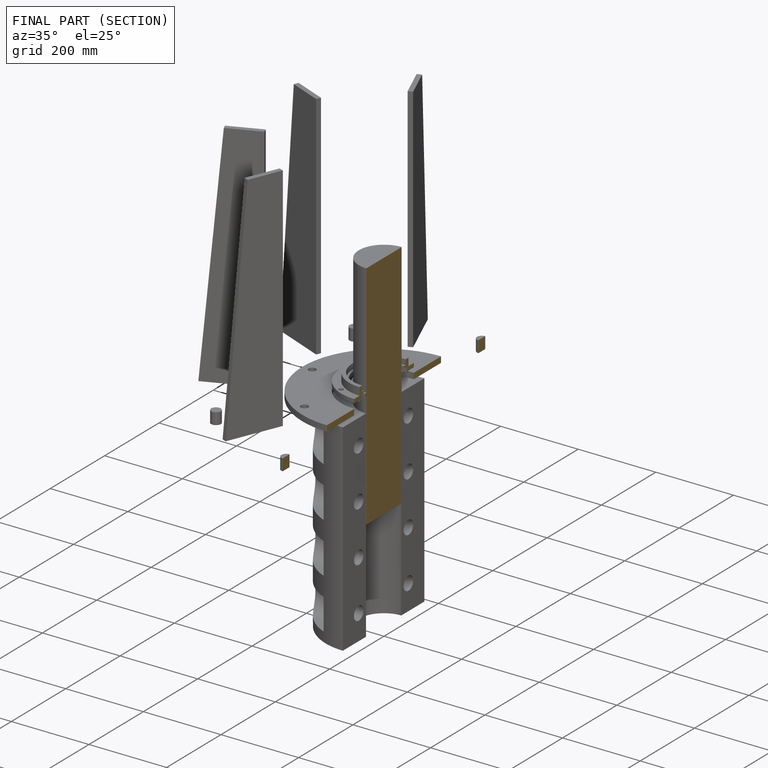
[diagram: finished part — half-section view (interior)]
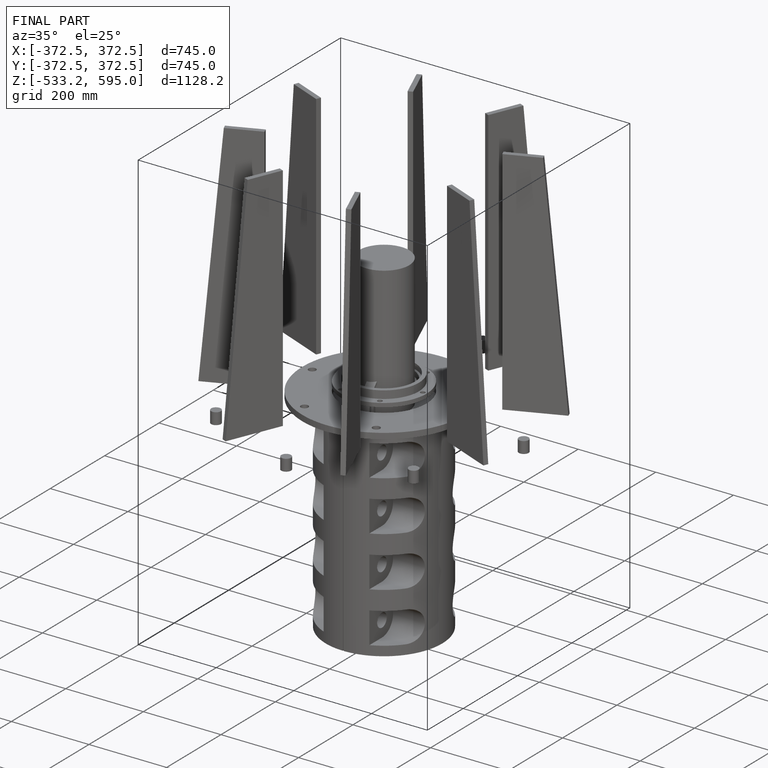
[diagram: finished part — iso view with bounding-box wireframe]
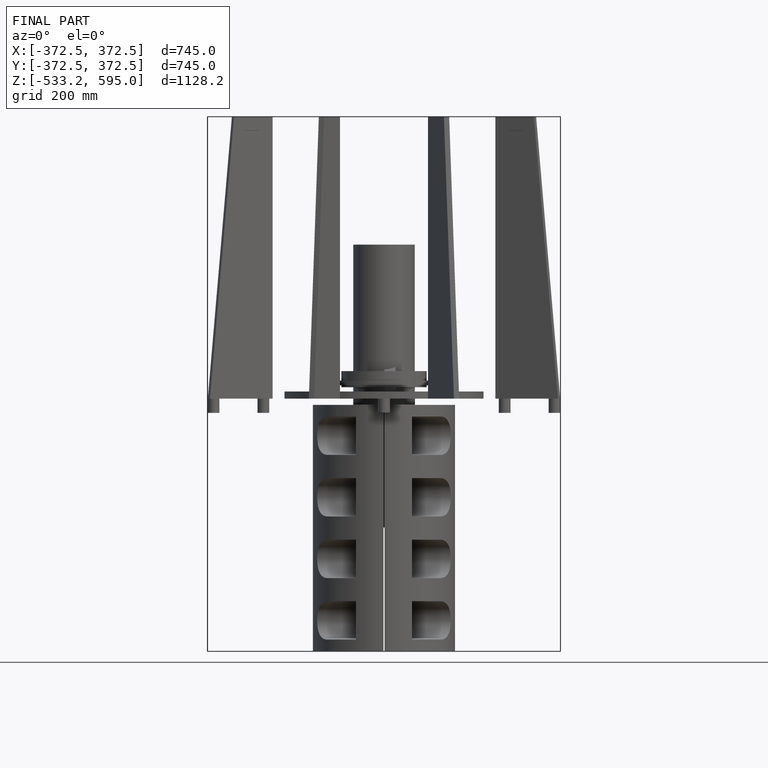
[diagram: finished part — front view with bounding-box wireframe]
